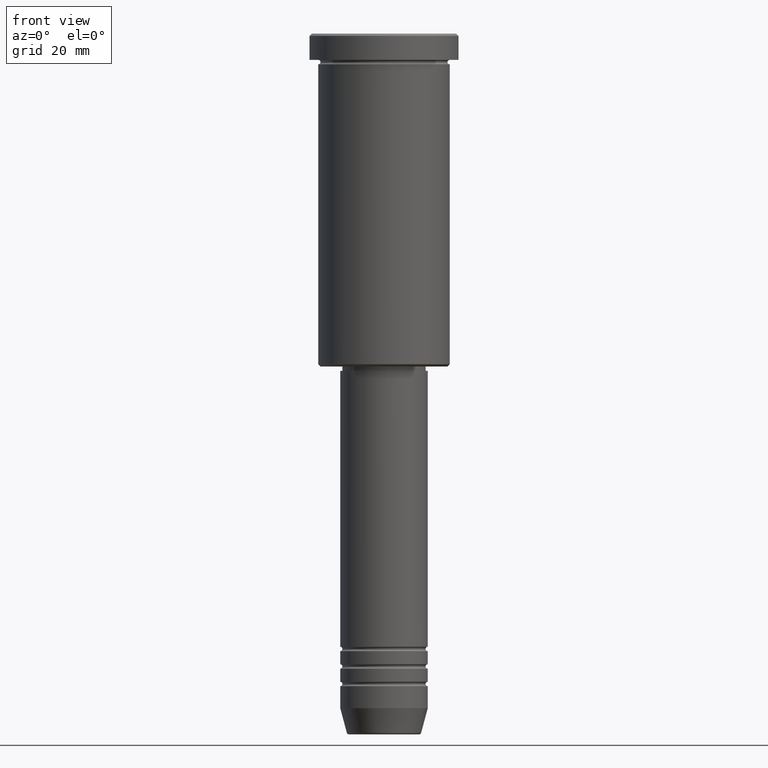
[diagram: clean part render]
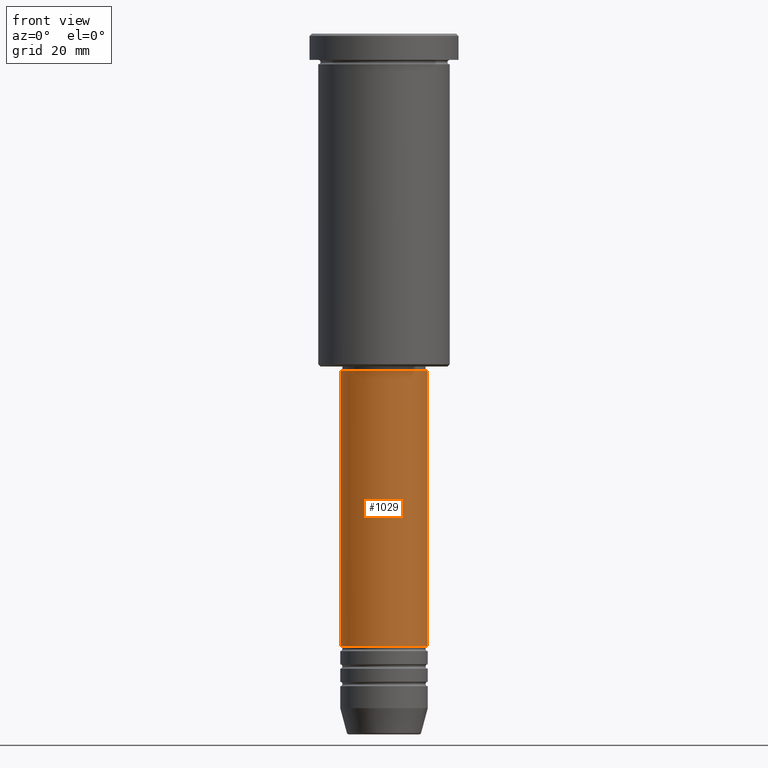
[diagram: same view with one face highlighted and labeled with its STEP entity id]
A machine part, front view. The second image highlights one B-rep face of the part: STEP entity #1029.
In plain terms, the highlighted cylindrical surface (partial cylindrical patch) has radius 10 mm, axis along (-0, -0, 1).
Its self-contained STEP definition (entity closure, byte-faithful):
#28 = VECTOR ( 'NONE', #905, 1000.000000000000000 ) ;
#89 = CARTESIAN_POINT ( 'NONE',  ( 9.999999999999998224, 0.000000000000000000, -77.00000000000004263 ) ) ;
#99 = ORIENTED_EDGE ( 'NONE', *, *, #377, .F. ) ;
#101 = AXIS2_PLACEMENT_3D ( 'NONE', #392, #219, #684 ) ;
#102 = CARTESIAN_POINT ( 'NONE',  ( 10.00000000000000178, 0.000000000000000000, -139.9999999999999716 ) ) ;
#175 = CARTESIAN_POINT ( 'NONE',  ( 0.000000000000000000, 0.000000000000000000, 0.000000000000000000 ) ) ;
#197 = DIRECTION ( 'NONE',  ( -0.000000000000000000, -0.000000000000000000, 1.000000000000000000 ) ) ;
#219 = DIRECTION ( 'NONE',  ( -0.000000000000000000, -0.000000000000000000, 1.000000000000000000 ) ) ;
#234 = DIRECTION ( 'NONE',  ( 1.000000000000000000, 0.000000000000000000, 0.000000000000000000 ) ) ;
#239 = VECTOR ( 'NONE', #197, 1000.000000000000000 ) ;
#246 = CARTESIAN_POINT ( 'NONE',  ( 0.000000000000000000, 0.000000000000000000, -139.9999999999999716 ) ) ;
#271 = CARTESIAN_POINT ( 'NONE',  ( -10.00000000000000000, 1.224646799147353256E-15, 0.000000000000000000 ) ) ;
#284 = DIRECTION ( 'NONE',  ( -0.000000000000000000, -0.000000000000000000, 1.000000000000000000 ) ) ;
#328 = CIRCLE ( 'NONE', #101, 9.999999999999998224 ) ;
#360 = VERTEX_POINT ( 'NONE', #1015 ) ;
#377 = EDGE_CURVE ( 'NONE', #508, #1049, #328, .T. ) ;
#380 = ORIENTED_EDGE ( 'NONE', *, *, #1013, .T. ) ;
#392 = CARTESIAN_POINT ( 'NONE',  ( 0.000000000000000000, 0.000000000000000000, -77.00000000000004263 ) ) ;
#449 = EDGE_CURVE ( 'NONE', #360, #649, #931, .T. ) ;
#458 = CYLINDRICAL_SURFACE ( 'NONE', #661, 10.00000000000000000 ) ;
#508 = VERTEX_POINT ( 'NONE', #821 ) ;
#563 = FACE_OUTER_BOUND ( 'NONE', #582, .T. ) ;
#582 = EDGE_LOOP ( 'NONE', ( #774, #791, #380, #99 ) ) ;
#649 = VERTEX_POINT ( 'NONE', #102 ) ;
#661 = AXIS2_PLACEMENT_3D ( 'NONE', #175, #284, #836 ) ;
#675 = AXIS2_PLACEMENT_3D ( 'NONE', #246, #811, #234 ) ;
#684 = DIRECTION ( 'NONE',  ( 1.000000000000000000, 0.000000000000000000, 0.000000000000000000 ) ) ;
#774 = ORIENTED_EDGE ( 'NONE', *, *, #888, .F. ) ;
#791 = ORIENTED_EDGE ( 'NONE', *, *, #449, .T. ) ;
#811 = DIRECTION ( 'NONE',  ( -0.000000000000000000, -0.000000000000000000, 1.000000000000000000 ) ) ;
#821 = CARTESIAN_POINT ( 'NONE',  ( -9.999999999999998224, 1.224646799147353256E-15, -77.00000000000004263 ) ) ;
#836 = DIRECTION ( 'NONE',  ( 1.000000000000000000, 0.000000000000000000, 0.000000000000000000 ) ) ;
#840 = CARTESIAN_POINT ( 'NONE',  ( 10.00000000000000000, 0.000000000000000000, 0.000000000000000000 ) ) ;
#888 = EDGE_CURVE ( 'NONE', #360, #508, #997, .T. ) ;
#905 = DIRECTION ( 'NONE',  ( -0.000000000000000000, -0.000000000000000000, 1.000000000000000000 ) ) ;
#931 = CIRCLE ( 'NONE', #675, 10.00000000000000178 ) ;
#994 = LINE ( 'NONE', #840, #239 ) ;
#997 = LINE ( 'NONE', #271, #28 ) ;
#1013 = EDGE_CURVE ( 'NONE', #649, #1049, #994, .T. ) ;
#1015 = CARTESIAN_POINT ( 'NONE',  ( -10.00000000000000178, 1.224646799147353454E-15, -139.9999999999999716 ) ) ;
#1029 = ADVANCED_FACE ( 'NONE', ( #563 ), #458, .T. ) ;
#1049 = VERTEX_POINT ( 'NONE', #89 ) ;